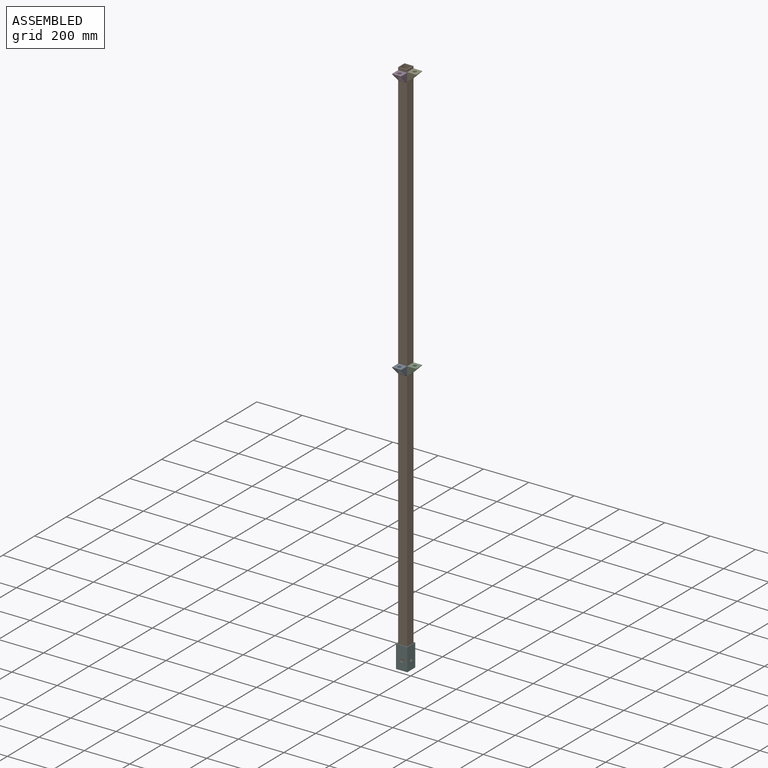
[diagram: assembled view]
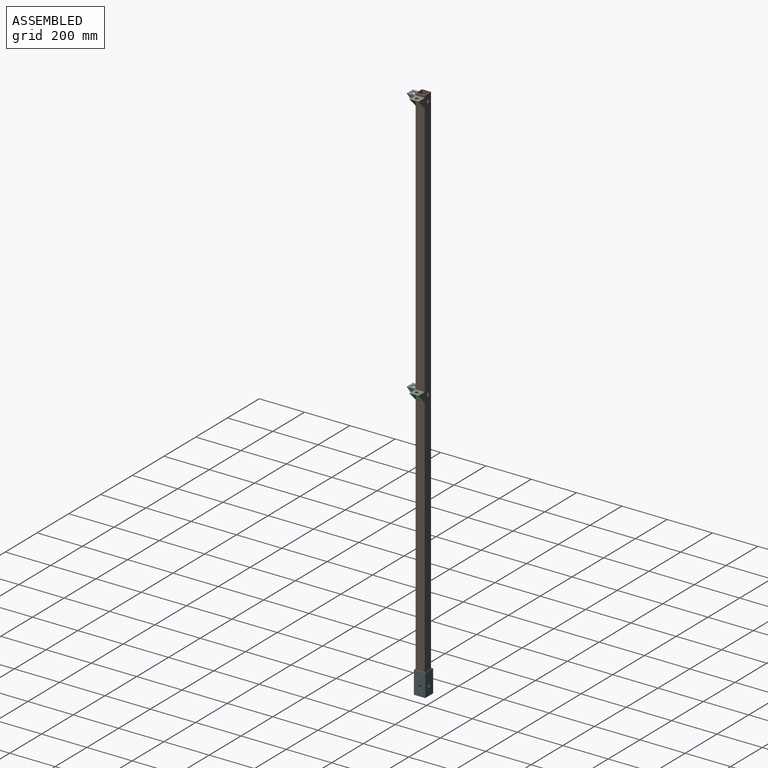
[diagram: assembled view, second angle]
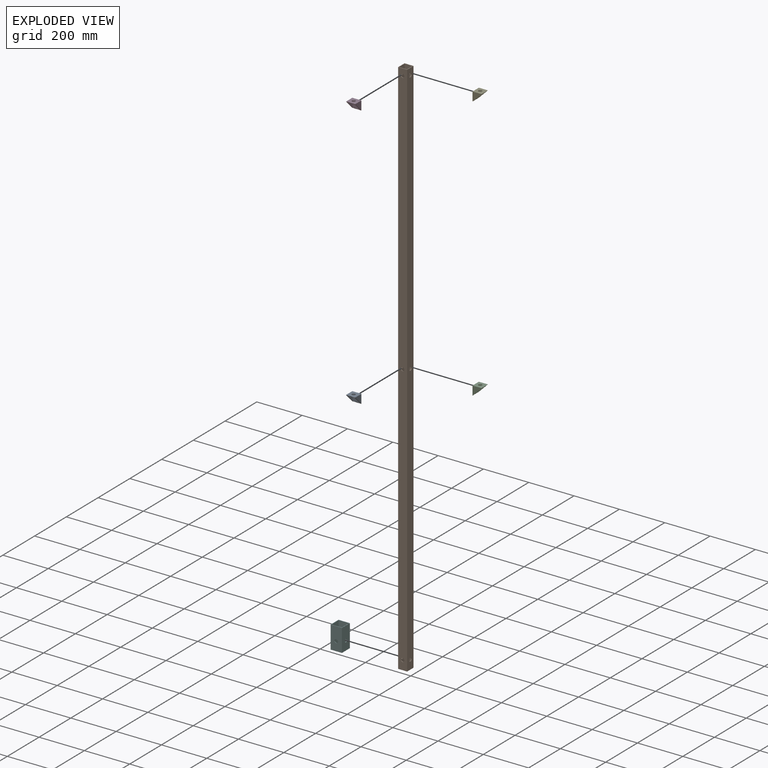
[diagram: exploded view]
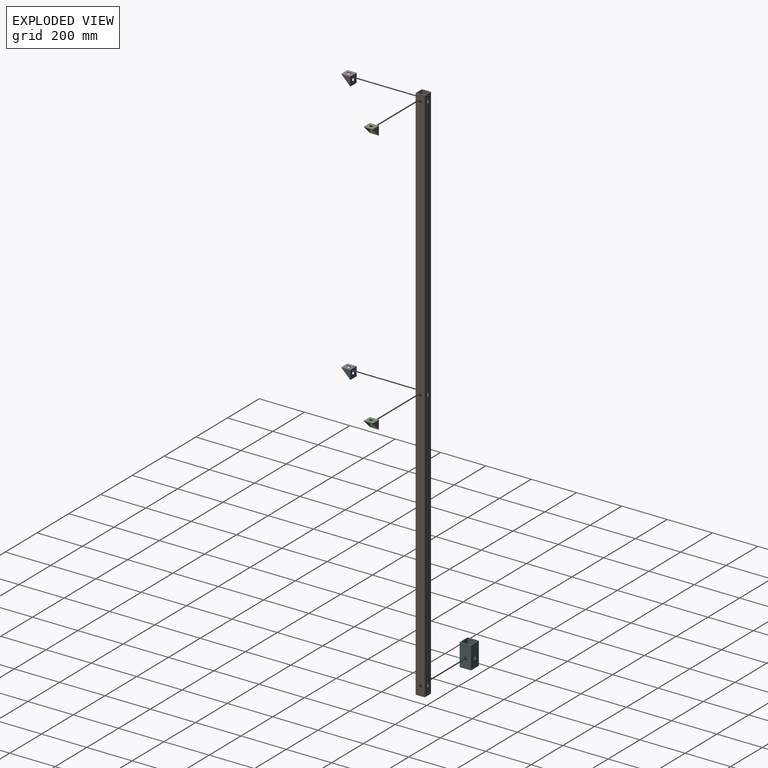
[diagram: exploded view, second angle]
ASSEMBLY  parts=6 mates=5
PART A: 12 faces, bbox 40x40x40 mm
  f0: plane 35.5x35mm, normal (0,-1,0), area 1065.8mm2, adj f1,f3,f4,f5,f11
  f1: plane 35.5x35mm, normal (1,0,0), area 630mm2, adj f0,f2,f4,f5
  f2: plane 35x0.5mm, normal (0,1,0), area 17.5mm2, adj f1,f3,f4,f5
  f3: plane 35.5x35mm, normal (-1,0,0), area 630mm2, adj f0,f2,f4,f5
  f4: plane 35x35mm, normal (0,0,1), area 1048.3mm2, adj f0,f1,f2,f3,f10
  f5: plane 40x40mm, normal (0,-0.71,0.71), area 530.3mm2, adj f0,f1,f2,f3,f6,f7,f8,f9
  f6: plane 40x40mm, normal (-1,0,0), area 800mm2, adj f5,f8,f9
  f7: plane 40x40mm, normal (1,0,0), area 800mm2, adj f5,f8,f9
  f8: plane 40x40mm, normal (0,0,-1), area 1423.3mm2, adj f5,f6,f7,f9,f10
  f9: plane 40x40mm, normal (0,1,0), area 1423.3mm2, adj f5,f6,f7,f8,f11
  f10: cylinder r=7.5mm len=15mm, axis (0,0,1), area 94.2mm2, adj f4,f8
  f11: cylinder r=7.5mm len=15mm, axis (0,-1,0), area 117.8mm2, adj f0,f9
PART B: 22 faces, bbox 40x2400x40 mm
  f0: plane 2400x40mm, normal (0,0,-1), area 95469.9mm2, adj f1,f7,f8,f9,f19,f20,f21
  f1: plane 2400x40mm, normal (1,0,0), area 95469.9mm2, adj f0,f2,f8,f9,f11,f14,f15
  f2: plane 2400x40mm, normal (0,0,1), area 95469.9mm2, adj f1,f7,f8,f9,f16,f17,f18
  f3: plane 2400x35mm, normal (0,0,1), area 83469.9mm2, adj f4,f6,f8,f9,f19,f20,f21
  f4: plane 2400x35mm, normal (1,0,0), area 83469.9mm2, adj f3,f5,f8,f9,f10,f12,f13
  f5: plane 2400x35mm, normal (0,0,-1), area 83469.9mm2, adj f4,f6,f8,f9,f16,f17,f18
  f6: plane 2400x35mm, normal (-1,0,0), area 83469.9mm2, adj f3,f5,f8,f9,f11,f14,f15
  f7: plane 2400x40mm, normal (-1,0,0), area 95469.9mm2, adj f0,f2,f8,f9,f10,f12,f13
  f8: plane 40x40mm, normal (0,-1,0), area 375mm2, adj f0,f1,f2,f3,f4,f5,f6,f7
  f9: plane 40x40mm, normal (0,1,0), area 375mm2, adj f0,f1,f2,f3,f4,f5,f6,f7
  f10: cylinder r=7.5mm len=15mm, axis (-1,0,0), area 117.8mm2, adj f4,f7
  f11: cylinder r=7.5mm len=15mm, axis (-1,0,0), area 117.8mm2, adj f1,f6
  f12: cylinder r=7.5mm len=15mm, axis (-1,0,0), area 117.8mm2, adj f4,f7
  f13: cylinder r=7.5mm len=15mm, axis (-1,0,0), area 117.8mm2, adj f4,f7
  f14: cylinder r=7.5mm len=15mm, axis (-1,0,0), area 117.8mm2, adj f1,f6
  f15: cylinder r=7.5mm len=15mm, axis (-1,0,0), area 117.8mm2, adj f1,f6
  f16: cylinder r=7.5mm len=15mm, axis (0,0,1), area 117.8mm2, adj f2,f5
  f17: cylinder r=7.5mm len=15mm, axis (0,0,1), area 117.8mm2, adj f2,f5
  f18: cylinder r=7.5mm len=15mm, axis (0,0,1), area 117.8mm2, adj f2,f5
  f19: cylinder r=7.5mm len=15mm, axis (0,0,1), area 117.8mm2, adj f0,f3
  f20: cylinder r=7.5mm len=15mm, axis (0,0,1), area 117.8mm2, adj f0,f3
  f21: cylinder r=7.5mm len=15mm, axis (0,0,1), area 117.8mm2, adj f0,f3
PART C: same geometry as A
PART D: same geometry as A
PART E: same geometry as A
PART F: 14 faces, bbox 50x100x50 mm
  f0: plane 100x50mm, normal (0,0,-1), area 4823.3mm2, adj f1,f7,f8,f9,f11
  f1: plane 100x50mm, normal (1,0,0), area 4823.3mm2, adj f0,f2,f8,f9,f13
  f2: plane 100x50mm, normal (0,0,1), area 4823.3mm2, adj f1,f7,f8,f9,f10
  f3: plane 100x46mm, normal (0,0,1), area 4423.3mm2, adj f4,f6,f8,f9,f11
  f4: plane 100x46mm, normal (1,0,0), area 4423.3mm2, adj f3,f5,f8,f9,f12
  f5: plane 100x46mm, normal (0,0,-1), area 4423.3mm2, adj f4,f6,f8,f9,f10
  f6: plane 100x46mm, normal (-1,0,0), area 4423.3mm2, adj f3,f5,f8,f9,f13
  f7: plane 100x50mm, normal (-1,0,0), area 4823.3mm2, adj f0,f2,f8,f9,f12
  f8: plane 50x50mm, normal (0,-1,0), area 384mm2, adj f0,f1,f2,f3,f4,f5,f6,f7
  f9: plane 50x50mm, normal (0,1,0), area 384mm2, adj f0,f1,f2,f3,f4,f5,f6,f7
  f10: cylinder r=7.5mm len=15mm, axis (0,0,-1), area 94.2mm2, adj f2,f5
  f11: cylinder r=7.5mm len=15mm, axis (0,0,-1), area 94.2mm2, adj f0,f3
  f12: cylinder r=7.5mm len=15mm, axis (-1,0,0), area 94.2mm2, adj f4,f7
  f13: cylinder r=7.5mm len=15mm, axis (-1,0,0), area 94.2mm2, adj f1,f6
PLACE A rot(axis=(1,0,0),90deg) t=(-787.58,-640.48,-784.3)mm
PLACE B rot(axis=(1,0,0),90deg) t=(-787.58,-600.48,397.99)mm
PLACE C rot(axis=(0.58,0.58,0.58),120deg) t=(-787.58,-600.48,-784.32)mm
PLACE D rot(axis=(1,0,0),90deg) t=(-787.58,-640.48,385.7)mm
PLACE E rot(axis=(0.58,0.58,0.58),120deg) t=(-787.58,-600.48,388.28)mm
PLACE F rot(axis=(-0.58,0.58,-0.58),120deg) t=(-833.58,-645.48,-2002.01)mm
MATE fastened D.f10 <-> B.f17  axis (0,1,0) through (-807.58,-640.48,367.99)mm
MATE fastened F.f10 <-> B.f12  axis (-1,0,0) through (-785.58,-620.48,-1962.01)mm
MATE fastened C.f10 <-> B.f1  axis (-1,0,0) through (-787.58,-620.48,-802.03)mm
MATE fastened A.f10 <-> B.f16  axis (0,1,0) through (-807.58,-640.48,-802.01)mm
MATE fastened E.f8 <-> B.f13  axis (-1,0,0) through (-787.58,-620.48,367.99)mm
